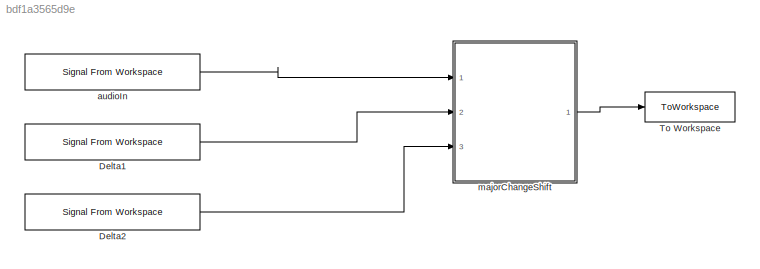
MODEL slx_bdf1a3565d9e
KIND model
CONFIG AbsTol = auto
CONFIG EnableMultiTasking = off
CONFIG FixedStep = auto
CONFIG InitFcn = initCallback
CONFIG MaxStep = auto
CONFIG MinStep = auto
CONFIG PostLoadFcn = postLoadCallback
CONFIG RelTol = 1e-3
CONFIG SampleTimeConstraint = Unconstrained
CONFIG SolverName = VariableStepAuto
CONFIG StartTime = 0.0
CONFIG StopFcn = stopCallback
CONFIG StopTime = 18
BLOCK [Reference] Delta1  REF=dspsrcs4/Signal From
Workspace
  Ports = [0, 1]
  SourceBlock = dspsrcs4/Signal From\nWorkspace
  SourceProductBaseCode = DS
  SourceType = Signal From Workspace
BLOCK [Reference] Delta2  REF=dspsrcs4/Signal From
Workspace
  Ports = [0, 1]
  SourceBlock = dspsrcs4/Signal From\nWorkspace
  SourceProductBaseCode = DS
  SourceType = Signal From Workspace
BLOCK [ToWorkspace] To Workspace
  FixptAsFi = on
  MaxDataPoints = inf
  Ports = [1]
  SampleTime = modelParams.audio.samplePeriod
  Save2DSignal = 2-D array (concatenate along first dimension)
  VariableName = AudioOut
BLOCK [Reference] audioIn  REF=dspsrcs4/Signal From
Workspace
  Ports = [0, 1]
  SourceBlock = dspsrcs4/Signal From\nWorkspace
  SourceProductBaseCode = DS
  SourceType = Signal From Workspace
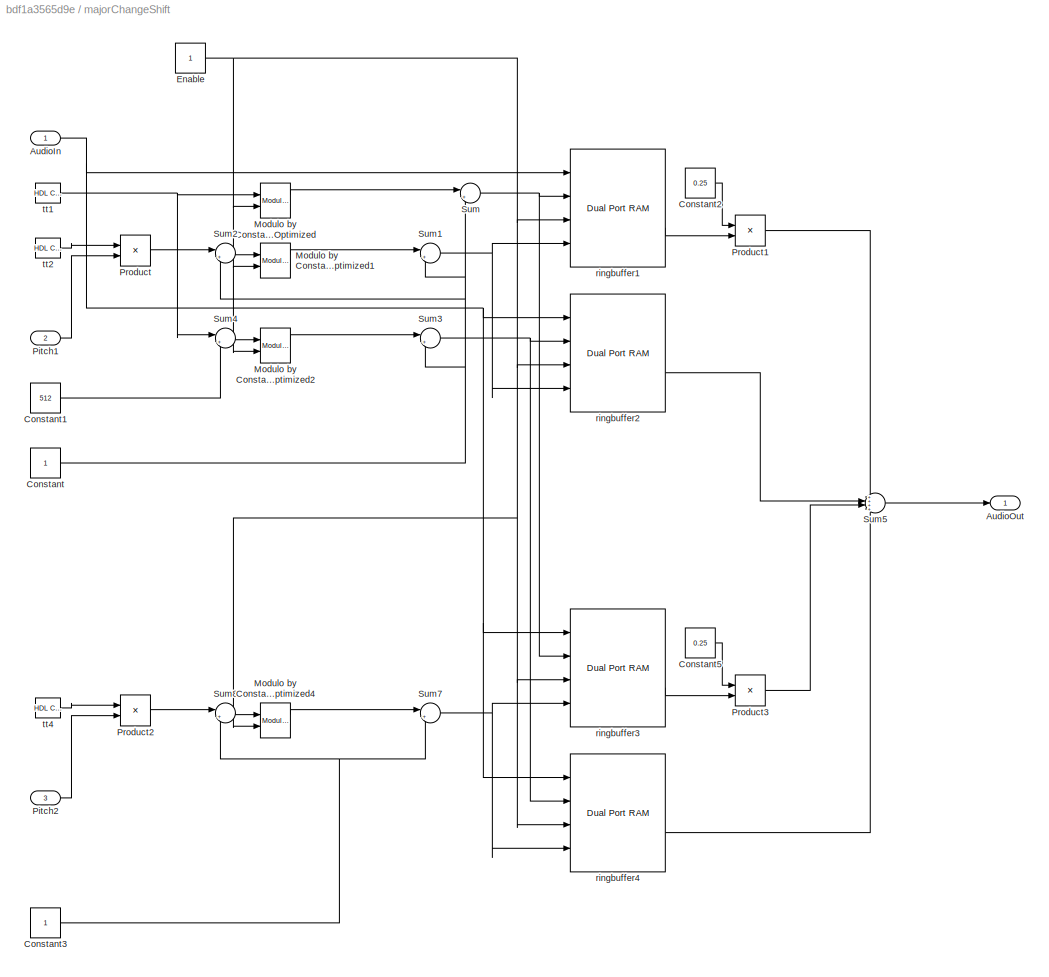
BLOCK [SubSystem] majorChangeShift
  Ports = [3, 1]
  RequestExecContextInheritance = off
BLOCK [Inport] majorChangeShift/AudioIn
  SampleTime = modelParams.audio.samplePeriod
BLOCK [Outport] majorChangeShift/AudioOut
  SampleTime = modelParams.audio.samplePeriod
BLOCK [Constant] majorChangeShift/Constant
  OutDataTypeStr = uint32
  SampleTime = modelParams.audio.samplePeriod
BLOCK [Constant] majorChangeShift/Constant1
  OutDataTypeStr = uint32
  SampleTime = modelParams.audio.samplePeriod
  Value = 512
BLOCK [Constant] majorChangeShift/Constant2
  OutDataTypeStr = fixdt(0,modelParams.audio.wordLength,modelParams.audio.fractionLength)
  SampleTime = modelParams.audio.samplePeriod
  Value = 0.25
BLOCK [Constant] majorChangeShift/Constant3
  OutDataTypeStr = uint32
  SampleTime = modelParams.audio.samplePeriod
BLOCK [Constant] majorChangeShift/Constant5
  OutDataTypeStr = fixdt(0,modelParams.audio.wordLength,modelParams.audio.fractionLength)
  SampleTime = modelParams.audio.samplePeriod
  Value = 0.25
BLOCK [Constant] majorChangeShift/Enable
  OutDataTypeStr = boolean
  SampleTime = modelParams.audio.samplePeriod
BLOCK [Reference] majorChangeShift/Modulo by Constant HDL Optimized  REF=embmathops/Modulo by Constant
HDL Optimized
  Ports = [2, 2]
  SourceBlock = embmathops/Modulo by Constant\nHDL Optimized
  SourceProductBaseCode = SL
  SourceType = fixed.system.internal.modbyconstant_hdl
BLOCK [Reference] majorChangeShift/Modulo by Constant HDL Optimized1  REF=embmathops/Modulo by Constant
HDL Optimized
  Ports = [2, 2]
  SourceBlock = embmathops/Modulo by Constant\nHDL Optimized
  SourceProductBaseCode = SL
  SourceType = fixed.system.internal.modbyconstant_hdl
BLOCK [Reference] majorChangeShift/Modulo by Constant HDL Optimized2  REF=embmathops/Modulo by Constant
HDL Optimized
  Ports = [2, 2]
  SourceBlock = embmathops/Modulo by Constant\nHDL Optimized
  SourceProductBaseCode = SL
  SourceType = fixed.system.internal.modbyconstant_hdl
BLOCK [Reference] majorChangeShift/Modulo by Constant HDL Optimized4  REF=embmathops/Modulo by Constant
HDL Optimized
  Ports = [2, 2]
  SourceBlock = embmathops/Modulo by Constant\nHDL Optimized
  SourceProductBaseCode = SL
  SourceType = fixed.system.internal.modbyconstant_hdl
BLOCK [Inport] majorChangeShift/Pitch1
  Port = 2
  SampleTime = modelParams.audio.samplePeriod
BLOCK [Inport] majorChangeShift/Pitch2
  Port = 3
  SampleTime = modelParams.audio.samplePeriod
BLOCK [Product] majorChangeShift/Product
  Ports = [2, 1]
  SampleTime = modelParams.audio.samplePeriod
BLOCK [Product] majorChangeShift/Product1
  OutDataTypeStr = fixdt(1,modelParams.audio.wordLength,modelParams.audio.fractionLength)
  Ports = [2, 1]
  SampleTime = modelParams.audio.samplePeriod
  SaturateOnIntegerOverflow = on
BLOCK [Product] majorChangeShift/Product2
  Ports = [2, 1]
  SampleTime = modelParams.audio.samplePeriod
BLOCK [Product] majorChangeShift/Product3
  OutDataTypeStr = fixdt(1,modelParams.audio.wordLength,modelParams.audio.fractionLength)
  Ports = [2, 1]
  SampleTime = modelParams.audio.samplePeriod
  SaturateOnIntegerOverflow = on
BLOCK [Sum] majorChangeShift/Sum
  Inputs = |++
  OutDataTypeStr = fixdt(0,modelParams.dpramAddressSize,0)
  Ports = [2, 1]
  SampleTime = modelParams.audio.samplePeriod
BLOCK [Sum] majorChangeShift/Sum1
  Inputs = |++
  OutDataTypeStr = fixdt(0,modelParams.dpramAddressSize,0)
  Ports = [2, 1]
  SampleTime = modelParams.audio.samplePeriod
BLOCK [Sum] majorChangeShift/Sum2
  Inputs = |+-
  OutDataTypeStr = fixdt(0,modelParams.dpramAddressSize,0)
  Ports = [2, 1]
  SampleTime = modelParams.audio.samplePeriod
BLOCK [Sum] majorChangeShift/Sum3
  Inputs = |++
  OutDataTypeStr = fixdt(0,modelParams.dpramAddressSize,0)
  Ports = [2, 1]
  SampleTime = modelParams.audio.samplePeriod
BLOCK [Sum] majorChangeShift/Sum4
  Inputs = |++
  OutDataTypeStr = fixdt(0,modelParams.dpramAddressSize,0)
  Ports = [2, 1]
  SampleTime = modelParams.audio.samplePeriod
BLOCK [Sum] majorChangeShift/Sum5
  Inputs = ++++
  OutDataTypeStr = fixdt(1,modelParams.audio.wordLength,modelParams.audio.fractionLength)
  Ports = [4, 1]
  SampleTime = modelParams.audio.samplePeriod
  SaturateOnIntegerOverflow = on
BLOCK [Sum] majorChangeShift/Sum7
  Inputs = |++
  OutDataTypeStr = fixdt(0,modelParams.dpramAddressSize,0)
  Ports = [2, 1]
  SampleTime = modelParams.audio.samplePeriod
BLOCK [Sum] majorChangeShift/Sum8
  Inputs = |+-
  OutDataTypeStr = fixdt(0,modelParams.dpramAddressSize,0)
  Ports = [2, 1]
  SampleTime = modelParams.audio.samplePeriod
BLOCK [Reference] majorChangeShift/ringbuffer1  REF=hdlsllib/HDL RAMs/Dual Port RAM
  Ports = [4, 2]
  SourceBlock = hdlsllib/HDL RAMs/Dual Port RAM
  SourceProductBaseCode = SL
  SourceType = Dual-port RAM
BLOCK [Reference] majorChangeShift/ringbuffer2  REF=hdlsllib/HDL RAMs/Dual Port RAM
  Ports = [4, 2]
  SourceBlock = hdlsllib/HDL RAMs/Dual Port RAM
  SourceProductBaseCode = SL
  SourceType = Dual-port RAM
BLOCK [Reference] majorChangeShift/ringbuffer3  REF=hdlsllib/HDL RAMs/Dual Port RAM
  Ports = [4, 2]
  SourceBlock = hdlsllib/HDL RAMs/Dual Port RAM
  SourceProductBaseCode = SL
  SourceType = Dual-port RAM
BLOCK [Reference] majorChangeShift/ringbuffer4  REF=hdlsllib/HDL RAMs/Dual Port RAM
  Ports = [4, 2]
  SourceBlock = hdlsllib/HDL RAMs/Dual Port RAM
  SourceProductBaseCode = SL
  SourceType = Dual-port RAM
BLOCK [Reference] majorChangeShift/tt1  REF=hdlsllib/Sources/HDL Counter
  Ports = [0, 1]
  SourceBlock = hdlsllib/Sources/HDL Counter
  SourceProductBaseCode = SL
  SourceType = HDL Counter
BLOCK [Reference] majorChangeShift/tt2  REF=hdlsllib/Sources/HDL Counter
  Ports = [0, 1]
  SourceBlock = hdlsllib/Sources/HDL Counter
  SourceProductBaseCode = SL
  SourceType = HDL Counter
BLOCK [Reference] majorChangeShift/tt4  REF=hdlsllib/Sources/HDL Counter
  Ports = [0, 1]
  SourceBlock = hdlsllib/Sources/HDL Counter
  SourceProductBaseCode = SL
  SourceType = HDL Counter
LINE Delta1:1 -> majorChangeShift:2
LINE Delta2:1 -> majorChangeShift:3
LINE audioIn:1 -> majorChangeShift:1
NET majorChangeShift/AudioIn:1 -> majorChangeShift/ringbuffer1:1, majorChangeShift/ringbuffer2:1, majorChangeShift/ringbuffer3:1, majorChangeShift/ringbuffer4:1
LINE majorChangeShift/Constant1:1 -> majorChangeShift/Sum4:2
LINE majorChangeShift/Constant2:1 -> majorChangeShift/Product1:1
NET majorChangeShift/Constant3:1 -> majorChangeShift/Sum7:2, majorChangeShift/Sum8:2
LINE majorChangeShift/Constant5:1 -> majorChangeShift/Product3:1
NET majorChangeShift/Constant:1 -> majorChangeShift/Sum1:2, majorChangeShift/Sum2:2, majorChangeShift/Sum3:2, majorChangeShift/Sum:2
NET majorChangeShift/Enable:1 -> majorChangeShift/Modulo by Constant HDL Optimized1:2, majorChangeShift/Modulo by Constant HDL Optimized2:2, majorChangeShift/Modulo by Constant HDL Optimized4:2, majorChangeShift/Modulo by Constant HDL Optimized:2, majorChangeShift/ringbuffer1:3, majorChangeShift/ringbuffer2:3, majorChangeShift/ringbuffer3:3, majorChangeShift/ringbuffer4:3
LINE majorChangeShift/Modulo by Constant HDL Optimized1:1 -> majorChangeShift/Sum1:1
LINE majorChangeShift/Modulo by Constant HDL Optimized2:1 -> majorChangeShift/Sum3:1
LINE majorChangeShift/Modulo by Constant HDL Optimized4:1 -> majorChangeShift/Sum7:1
LINE majorChangeShift/Modulo by Constant HDL Optimized:1 -> majorChangeShift/Sum:1
LINE majorChangeShift/Pitch1:1 -> majorChangeShift/Product:2
LINE majorChangeShift/Pitch2:1 -> majorChangeShift/Product2:2
LINE majorChangeShift/Product1:1 -> majorChangeShift/Sum5:1
LINE majorChangeShift/Product2:1 -> majorChangeShift/Sum8:1
LINE majorChangeShift/Product3:1 -> majorChangeShift/Sum5:3
LINE majorChangeShift/Product:1 -> majorChangeShift/Sum2:1
NET majorChangeShift/Sum1:1 -> majorChangeShift/ringbuffer1:4, majorChangeShift/ringbuffer2:4
LINE majorChangeShift/Sum2:1 -> majorChangeShift/Modulo by Constant HDL Optimized1:1
NET majorChangeShift/Sum3:1 -> majorChangeShift/ringbuffer2:2, majorChangeShift/ringbuffer4:2
LINE majorChangeShift/Sum4:1 -> majorChangeShift/Modulo by Constant HDL Optimized2:1
LINE majorChangeShift/Sum5:1 -> majorChangeShift/AudioOut:1
NET majorChangeShift/Sum7:1 -> majorChangeShift/ringbuffer3:4, majorChangeShift/ringbuffer4:4
LINE majorChangeShift/Sum8:1 -> majorChangeShift/Modulo by Constant HDL Optimized4:1
NET majorChangeShift/Sum:1 -> majorChangeShift/ringbuffer1:2, majorChangeShift/ringbuffer3:2
LINE majorChangeShift/ringbuffer1:2 -> majorChangeShift/Product1:2
LINE majorChangeShift/ringbuffer2:2 -> majorChangeShift/Sum5:2
LINE majorChangeShift/ringbuffer3:2 -> majorChangeShift/Product3:2
LINE majorChangeShift/ringbuffer4:2 -> majorChangeShift/Sum5:4
NET majorChangeShift/tt1:1 -> majorChangeShift/Modulo by Constant HDL Optimized:1, majorChangeShift/Sum4:1
LINE majorChangeShift/tt2:1 -> majorChangeShift/Product:1
LINE majorChangeShift/tt4:1 -> majorChangeShift/Product2:1
LINE majorChangeShift:1 -> To Workspace:1
note: NET lines group one-source signal fan-out (src -> all destinations, sorted); 1:1 wires keep LINE
